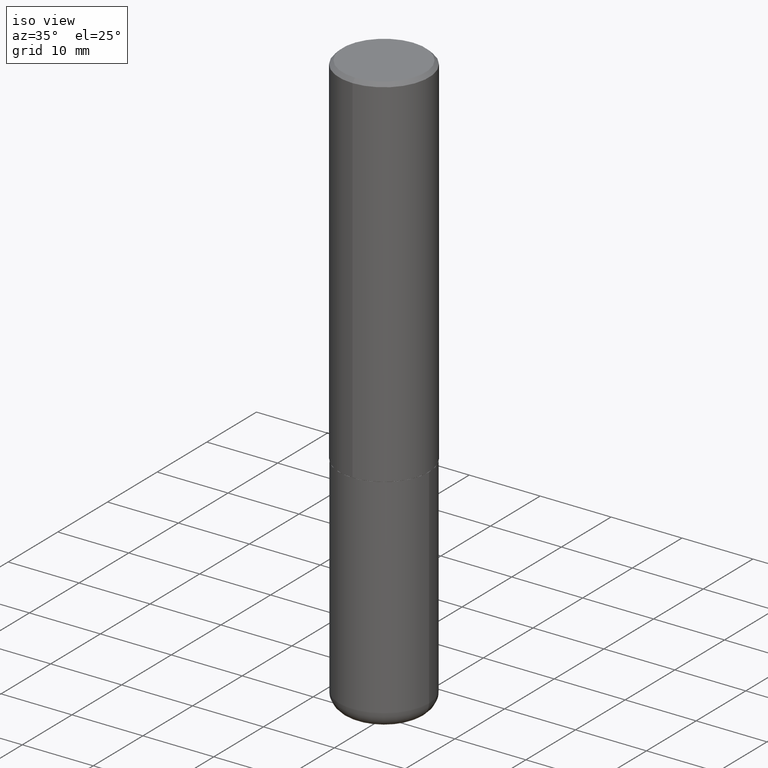
[diagram: clean part render]
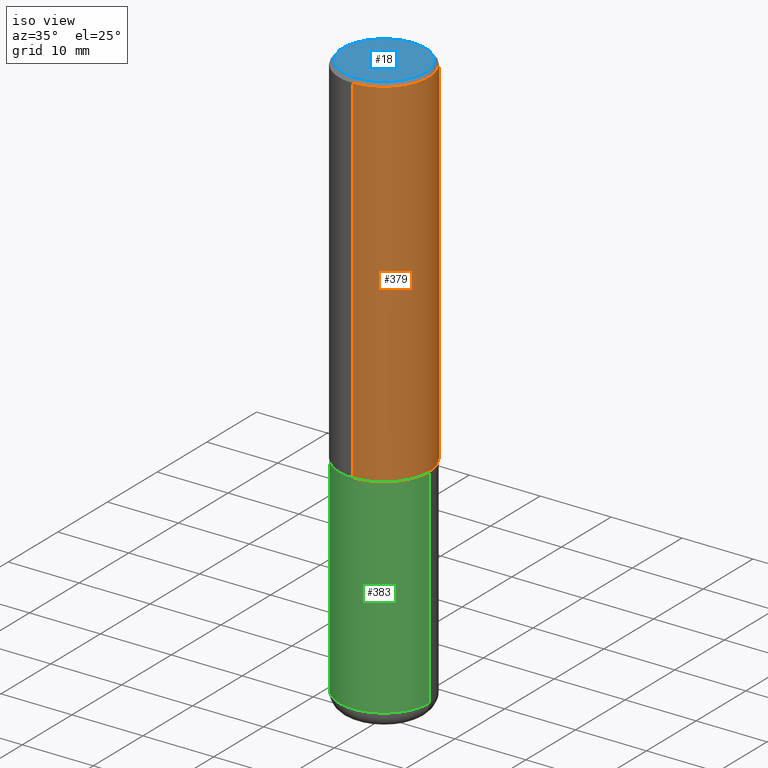
[diagram: same view with three faces highlighted in distinct colors, each labeled with its STEP entity id]
A machine part, iso view with three faces highlighted in distinct colors.
Their STEP definitions:

[orange] entity #379 — the highlighted cylindrical surface (partial cylindrical patch) has radius 6.35 mm, axis along (-0, 0, 1).
#1 = DIRECTION ( 'NONE',  ( -2.443621766204130648E-29, 3.494126405222933371E-15, 1.000000000000000000 ) ) ;
#3 = DIRECTION ( 'NONE',  ( -2.443621766204130648E-29, 3.494126405222933371E-15, 1.000000000000000000 ) ) ;
#15 = CIRCLE ( 'NONE', #310, 0.2500000000000000555 ) ;
#21 = VERTEX_POINT ( 'NONE', #311 ) ;
#33 = CARTESIAN_POINT ( 'NONE',  ( -1.745740669421519346E-15, -0.2500000000000072164, -1.998999999999999000 ) ) ;
#59 = ORIENTED_EDGE ( 'NONE', *, *, #103, .T. ) ;
#68 = DIRECTION ( 'NONE',  ( -2.443621766204130368E-29, 3.494126405222933371E-15, 1.000000000000000000 ) ) ;
#69 = LINE ( 'NONE', #321, #268 ) ;
#97 = CARTESIAN_POINT ( 'NONE',  ( 1.745740669421567269E-15, 0.2499999999999999722, -0.02000000000000092329 ) ) ;
#101 = DIRECTION ( 'NONE',  ( -6.982962677686266711E-15, -1.000000000000000000, 3.278217592397113101E-15 ) ) ;
#103 = EDGE_CURVE ( 'NONE', #256, #149, #69, .T. ) ;
#107 = DIRECTION ( 'NONE',  ( -2.443621766204130368E-29, 3.494126405222933371E-15, 1.000000000000000000 ) ) ;
#123 = ORIENTED_EDGE ( 'NONE', *, *, #306, .T. ) ;
#134 = DIRECTION ( 'NONE',  ( -6.982962677686265133E-15, -1.000000000000000000, 3.500180241882336472E-15 ) ) ;
#138 = CIRCLE ( 'NONE', #281, 0.2500000000000002220 ) ;
#139 = CYLINDRICAL_SURFACE ( 'NONE', #315, 0.2500000000000001110 ) ;
#149 = VERTEX_POINT ( 'NONE', #97 ) ;
#168 = FACE_OUTER_BOUND ( 'NONE', #223, .T. ) ;
#188 = LINE ( 'NONE', #293, #414 ) ;
#207 = CARTESIAN_POINT ( 'NONE',  ( 0.000000000000000000, 0.000000000000000000, 0.000000000000000000 ) ) ;
#212 = EDGE_CURVE ( 'NONE', #21, #149, #15, .T. ) ;
#223 = EDGE_LOOP ( 'NONE', ( #123, #59, #382, #406 ) ) ;
#232 = DIRECTION ( 'NONE',  ( -6.982962677686266711E-15, -1.000000000000000000, 3.494126405222933371E-15 ) ) ;
#256 = VERTEX_POINT ( 'NONE', #290 ) ;
#260 = CARTESIAN_POINT ( 'NONE',  ( 4.884799910642056120E-29, -6.984758684040643933E-15, -1.998999999999999888 ) ) ;
#268 = VECTOR ( 'NONE', #3, 39.37007874015748143 ) ;
#281 = AXIS2_PLACEMENT_3D ( 'NONE', #260, #386, #101 ) ;
#290 = CARTESIAN_POINT ( 'NONE',  ( 1.776356839400276103E-15, 0.2499999999999932276, -1.999000000000000776 ) ) ;
#293 = CARTESIAN_POINT ( 'NONE',  ( -1.745740669421567467E-15, -0.2500000000000001110, 8.735316013057337372E-16 ) ) ;
#299 = VERTEX_POINT ( 'NONE', #33 ) ;
#306 = EDGE_CURVE ( 'NONE', #299, #256, #138, .T. ) ;
#310 = AXIS2_PLACEMENT_3D ( 'NONE', #352, #68, #134 ) ;
#311 = CARTESIAN_POINT ( 'NONE',  ( -1.715124499442882496E-15, -0.2500000000000001110, -0.01999999999999917122 ) ) ;
#315 = AXIS2_PLACEMENT_3D ( 'NONE', #207, #107, #232 ) ;
#321 = CARTESIAN_POINT ( 'NONE',  ( 1.776356839400251254E-15, 0.2500000000000001110, -8.735316013057337372E-16 ) ) ;
#336 = EDGE_CURVE ( 'NONE', #299, #21, #188, .T. ) ;
#352 = CARTESIAN_POINT ( 'NONE',  ( 4.887243532408272857E-31, -6.988252810445882815E-17, -0.02000000000000004552 ) ) ;
#379 = ADVANCED_FACE ( 'NONE', ( #168 ), #139, .T. ) ;
#382 = ORIENTED_EDGE ( 'NONE', *, *, #212, .F. ) ;
#386 = DIRECTION ( 'NONE',  ( -2.443621766204130368E-29, 3.494126405222933371E-15, 1.000000000000000000 ) ) ;
#406 = ORIENTED_EDGE ( 'NONE', *, *, #336, .F. ) ;
#414 = VECTOR ( 'NONE', #1, 39.37007874015748143 ) ;

[blue] entity #18 — the highlighted planar face has unit normal (0, -0, -1).
#18 = ADVANCED_FACE ( 'NONE', ( #347 ), #154, .F. ) ;
#47 = AXIS2_PLACEMENT_3D ( 'NONE', #361, #194, #196 ) ;
#48 = CARTESIAN_POINT ( 'NONE',  ( 1.675911042644704366E-15, 0.2300000000000000377, -7.987721954438231638E-16 ) ) ;
#55 = ORIENTED_EDGE ( 'NONE', *, *, #170, .T. ) ;
#82 = AXIS2_PLACEMENT_3D ( 'NONE', #226, #98, #364 ) ;
#84 = ORIENTED_EDGE ( 'NONE', *, *, #87, .T. ) ;
#87 = EDGE_CURVE ( 'NONE', #116, #400, #233, .T. ) ;
#98 = DIRECTION ( 'NONE',  ( -2.443621766204130368E-29, 3.494126405222933371E-15, 1.000000000000000000 ) ) ;
#116 = VERTEX_POINT ( 'NONE', #384 ) ;
#154 = PLANE ( 'NONE',  #322 ) ;
#170 = EDGE_CURVE ( 'NONE', #400, #116, #328, .T. ) ;
#176 = EDGE_LOOP ( 'NONE', ( #55, #84 ) ) ;
#194 = DIRECTION ( 'NONE',  ( -2.443621766204130368E-29, 3.494126405222933371E-15, 1.000000000000000000 ) ) ;
#196 = DIRECTION ( 'NONE',  ( -6.982962677686265922E-15, -1.000000000000000000, 3.494126405222933371E-15 ) ) ;
#226 = CARTESIAN_POINT ( 'NONE',  ( -1.191724463922560587E-46, 1.704042734735616643E-32, 4.876877757451635874E-18 ) ) ;
#233 = CIRCLE ( 'NONE', #47, 0.2300000000000000377 ) ;
#253 = DIRECTION ( 'NONE',  ( 2.443621766204130088E-29, -3.494126405222933371E-15, -1.000000000000000000 ) ) ;
#254 = DIRECTION ( 'NONE',  ( 6.982962677686265922E-15, 1.000000000000000000, -3.494126405222933371E-15 ) ) ;
#284 = CARTESIAN_POINT ( 'NONE',  ( 1.606081415867841462E-15, 0.2300000000000000377, -8.012106343225490734E-16 ) ) ;
#322 = AXIS2_PLACEMENT_3D ( 'NONE', #284, #253, #254 ) ;
#328 = CIRCLE ( 'NONE', #82, 0.2300000000000000377 ) ;
#347 = FACE_OUTER_BOUND ( 'NONE', #176, .T. ) ;
#361 = CARTESIAN_POINT ( 'NONE',  ( -1.191724463922560587E-46, 1.704042734735616643E-32, 4.876877757451635874E-18 ) ) ;
#364 = DIRECTION ( 'NONE',  ( -6.982962677686265922E-15, -1.000000000000000000, 3.494126405222933371E-15 ) ) ;
#384 = CARTESIAN_POINT ( 'NONE',  ( -1.646519519465167559E-15, -0.2300000000000000377, 8.085259509587265064E-16 ) ) ;
#400 = VERTEX_POINT ( 'NONE', #48 ) ;

[green] entity #383 — the highlighted cylindrical surface (partial cylindrical patch) has radius 6.35 mm, axis along (-0, 0, 1).
#17 = VERTEX_POINT ( 'NONE', #288 ) ;
#28 = EDGE_LOOP ( 'NONE', ( #349, #313, #49, #286 ) ) ;
#49 = ORIENTED_EDGE ( 'NONE', *, *, #265, .T. ) ;
#52 = AXIS2_PLACEMENT_3D ( 'NONE', #362, #142, #325 ) ;
#73 = DIRECTION ( 'NONE',  ( 1.000000000000000000, -6.982962677686266711E-15, 4.876176775795935793E-29 ) ) ;
#79 = CARTESIAN_POINT ( 'NONE',  ( -0.2500000000000000000, 1.776356839400250465E-15, -1.229733772563726445E-29 ) ) ;
#81 = FACE_OUTER_BOUND ( 'NONE', #28, .T. ) ;
#104 = CARTESIAN_POINT ( 'NONE',  ( 0.2499999999999998612, -1.277882170016590626E-14, -3.160000000000000142 ) ) ;
#111 = EDGE_CURVE ( 'NONE', #144, #380, #192, .T. ) ;
#112 = LINE ( 'NONE', #167, #302 ) ;
#142 = DIRECTION ( 'NONE',  ( -2.445468806185136597E-29, 3.491481338843145583E-15, 1.000000000000000000 ) ) ;
#144 = VERTEX_POINT ( 'NONE', #389 ) ;
#151 = VERTEX_POINT ( 'NONE', #104 ) ;
#166 = CARTESIAN_POINT ( 'NONE',  ( 0.2500000000000000000, -8.728703347107857054E-15, -2.000000000000000000 ) ) ;
#167 = CARTESIAN_POINT ( 'NONE',  ( 0.2500000000000000000, -1.745740669421566678E-15, 1.219044193948983948E-29 ) ) ;
#174 = CYLINDRICAL_SURFACE ( 'NONE', #324, 0.2500000000000000000 ) ;
#192 = CIRCLE ( 'NONE', #261, 0.2500000000000000000 ) ;
#230 = DIRECTION ( 'NONE',  ( -2.445468806185136877E-29, 3.491481338843145188E-15, 1.000000000000000000 ) ) ;
#237 = DIRECTION ( 'NONE',  ( -2.445468806185136877E-29, 3.491481338843145188E-15, 1.000000000000000000 ) ) ;
#257 = EDGE_CURVE ( 'NONE', #17, #144, #326, .T. ) ;
#258 = CARTESIAN_POINT ( 'NONE',  ( 4.890937612370273194E-29, -6.982962677686291165E-15, -2.000000000000000000 ) ) ;
#261 = AXIS2_PLACEMENT_3D ( 'NONE', #258, #392, #350 ) ;
#265 = EDGE_CURVE ( 'NONE', #151, #380, #112, .T. ) ;
#286 = ORIENTED_EDGE ( 'NONE', *, *, #111, .F. ) ;
#288 = CARTESIAN_POINT ( 'NONE',  ( -0.2499999999999998612, -9.256724191344090697E-15, -3.160000000000000142 ) ) ;
#295 = DIRECTION ( 'NONE',  ( -2.445468806185136597E-29, 3.491481338843145583E-15, 1.000000000000000000 ) ) ;
#302 = VECTOR ( 'NONE', #237, 39.37007874015748143 ) ;
#313 = ORIENTED_EDGE ( 'NONE', *, *, #415, .T. ) ;
#324 = AXIS2_PLACEMENT_3D ( 'NONE', #397, #295, #73 ) ;
#325 = DIRECTION ( 'NONE',  ( 1.000000000000000000, -6.982962677686269077E-15, 0.000000000000000000 ) ) ;
#326 = LINE ( 'NONE', #79, #401 ) ;
#349 = ORIENTED_EDGE ( 'NONE', *, *, #257, .F. ) ;
#350 = DIRECTION ( 'NONE',  ( 1.000000000000000000, -6.982962677686266711E-15, 0.000000000000000000 ) ) ;
#362 = CARTESIAN_POINT ( 'NONE',  ( 7.727681427545032274E-29, -1.103308103074433958E-14, -3.160000000000000142 ) ) ;
#373 = CIRCLE ( 'NONE', #52, 0.2500000000000000555 ) ;
#380 = VERTEX_POINT ( 'NONE', #166 ) ;
#383 = ADVANCED_FACE ( 'NONE', ( #81 ), #174, .T. ) ;
#389 = CARTESIAN_POINT ( 'NONE',  ( -0.2500000000000000000, -7.231665014815064515E-15, -2.000000000000000000 ) ) ;
#392 = DIRECTION ( 'NONE',  ( -2.445468806185136597E-29, 3.491481338843145583E-15, 1.000000000000000000 ) ) ;
#397 = CARTESIAN_POINT ( 'NONE',  ( 0.000000000000000000, 0.000000000000000000, 0.000000000000000000 ) ) ;
#401 = VECTOR ( 'NONE', #230, 39.37007874015748143 ) ;
#415 = EDGE_CURVE ( 'NONE', #17, #151, #373, .T. ) ;